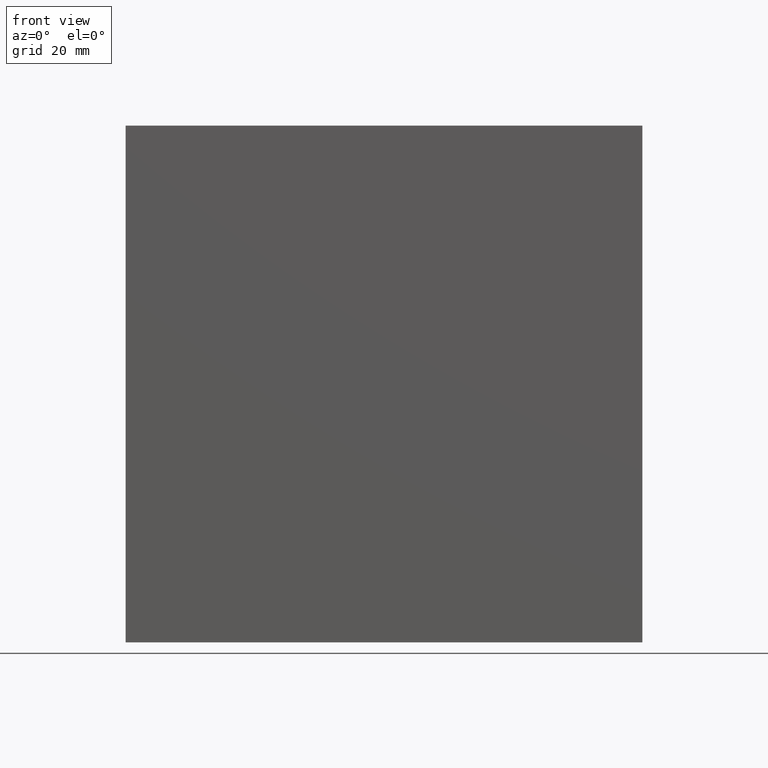
[diagram: clean part render]
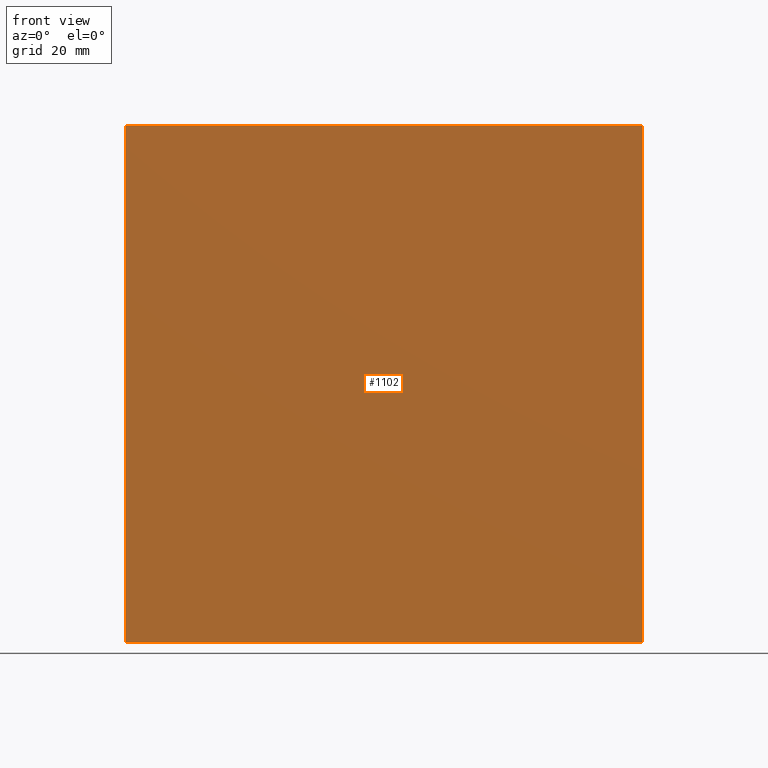
[diagram: same view with one face highlighted and labeled with its STEP entity id]
A machine part, front view. The second image highlights one B-rep face of the part: STEP entity #1102.
In plain terms, the highlighted planar face has unit normal (0, -1, 0).
Its self-contained STEP definition (entity closure, byte-faithful):
#24 = CARTESIAN_POINT ( 'NONE',  ( 101.9999999999999858, 0.000000000000000000, 0.000000000000000000 ) ) ;
#210 = CARTESIAN_POINT ( 'NONE',  ( 0.000000000000000000, 0.000000000000000000, -102.0000000000000000 ) ) ;
#212 = AXIS2_PLACEMENT_3D ( 'NONE', #397, #1688, #1853 ) ;
#247 = LINE ( 'NONE', #684, #1979 ) ;
#397 = CARTESIAN_POINT ( 'NONE',  ( 0.000000000000000000, 0.000000000000000000, 0.000000000000000000 ) ) ;
#499 = EDGE_CURVE ( 'NONE', #840, #1120, #247, .T. ) ;
#560 = DIRECTION ( 'NONE',  ( -0.000000000000000000, -0.000000000000000000, 1.000000000000000000 ) ) ;
#628 = CARTESIAN_POINT ( 'NONE',  ( 101.9999999999999858, 0.000000000000000000, -102.0000000000000000 ) ) ;
#684 = CARTESIAN_POINT ( 'NONE',  ( 0.000000000000000000, 0.000000000000000000, 0.000000000000000000 ) ) ;
#727 = DIRECTION ( 'NONE',  ( 1.000000000000000000, 0.000000000000000000, 0.000000000000000000 ) ) ;
#747 = ORIENTED_EDGE ( 'NONE', *, *, #1684, .F. ) ;
#777 = VECTOR ( 'NONE', #1972, 1000.000000000000000 ) ;
#840 = VERTEX_POINT ( 'NONE', #210 ) ;
#865 = CARTESIAN_POINT ( 'NONE',  ( 0.000000000000000000, 0.000000000000000000, 0.000000000000000000 ) ) ;
#1094 = EDGE_CURVE ( 'NONE', #1120, #1889, #2015, .T. ) ;
#1102 = ADVANCED_FACE ( 'NONE', ( #1193 ), #1505, .T. ) ;
#1120 = VERTEX_POINT ( 'NONE', #1867 ) ;
#1163 = LINE ( 'NONE', #1452, #777 ) ;
#1193 = FACE_OUTER_BOUND ( 'NONE', #1346, .T. ) ;
#1211 = CARTESIAN_POINT ( 'NONE',  ( 101.9999999999999858, 0.000000000000000000, 0.000000000000000000 ) ) ;
#1228 = ORIENTED_EDGE ( 'NONE', *, *, #1094, .F. ) ;
#1346 = EDGE_LOOP ( 'NONE', ( #1604, #747, #1848, #1228 ) ) ;
#1452 = CARTESIAN_POINT ( 'NONE',  ( 0.000000000000000000, 0.000000000000000000, -102.0000000000000000 ) ) ;
#1505 = PLANE ( 'NONE',  #212 ) ;
#1592 = VERTEX_POINT ( 'NONE', #628 ) ;
#1604 = ORIENTED_EDGE ( 'NONE', *, *, #499, .F. ) ;
#1668 = DIRECTION ( 'NONE',  ( 0.000000000000000000, 0.000000000000000000, -1.000000000000000000 ) ) ;
#1684 = EDGE_CURVE ( 'NONE', #1592, #840, #1163, .T. ) ;
#1688 = DIRECTION ( 'NONE',  ( 0.000000000000000000, -1.000000000000000000, 0.000000000000000000 ) ) ;
#1770 = EDGE_CURVE ( 'NONE', #1889, #1592, #2021, .T. ) ;
#1848 = ORIENTED_EDGE ( 'NONE', *, *, #1770, .F. ) ;
#1853 = DIRECTION ( 'NONE',  ( 0.000000000000000000, -0.000000000000000000, -1.000000000000000000 ) ) ;
#1867 = CARTESIAN_POINT ( 'NONE',  ( 0.000000000000000000, 0.000000000000000000, 0.000000000000000000 ) ) ;
#1889 = VERTEX_POINT ( 'NONE', #24 ) ;
#1949 = VECTOR ( 'NONE', #727, 1000.000000000000000 ) ;
#1972 = DIRECTION ( 'NONE',  ( -1.000000000000000000, -0.000000000000000000, -0.000000000000000000 ) ) ;
#1979 = VECTOR ( 'NONE', #560, 1000.000000000000000 ) ;
#2015 = LINE ( 'NONE', #865, #1949 ) ;
#2021 = LINE ( 'NONE', #1211, #2033 ) ;
#2033 = VECTOR ( 'NONE', #1668, 1000.000000000000000 ) ;